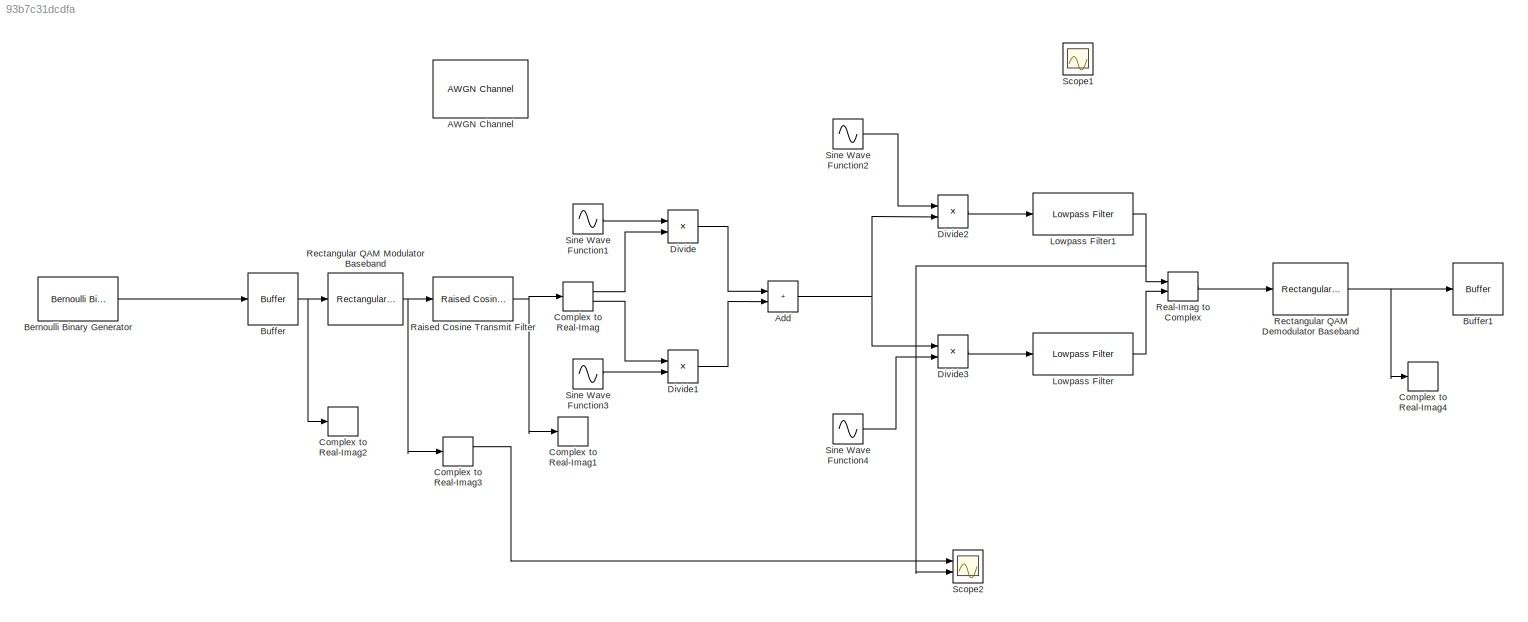
MODEL slx_93b7c31dcdfa
KIND model
CONFIG AbsTol = auto
CONFIG EnableMultiTasking = off
CONFIG FixedStep = auto
CONFIG MaxStep = auto
CONFIG MinStep = auto
CONFIG RelTol = 1e-3
CONFIG SampleTimeConstraint = Unconstrained
CONFIG SolverName = FixedStepAuto
CONFIG StartTime = 0.0
CONFIG StopTime = 10.0
BLOCK [Reference] AWGN Channel  REF=commchan3/AWGN
Channel
  Ports = [1, 1]
  SourceBlock = commchan3/AWGN\nChannel
  SourceProductBaseCode = CM
  SourceType = AWGN Channel
  UserDataPersistent = on
BLOCK [Sum] Add
  IconShape = rectangular
  Ports = [2, 1]
BLOCK [Reference] Bernoulli Binary Generator  REF=commrandsrc3/Bernoulli Binary
Generator
  Ports = [0, 1]
  SourceBlock = commrandsrc3/Bernoulli Binary\nGenerator
  SourceProductBaseCode = CM
  SourceType = Bernoulli Binary Generator
BLOCK [Buffer] Buffer
  N = 2
  OutputFrames = off
BLOCK [Buffer] Buffer1
  N = 2
  OutputFrames = off
BLOCK [ComplexToRealImag] Complex to Real-Imag
  Ports = [1, 2]
BLOCK [ComplexToRealImag] Complex to Real-Imag1
  Ports = [1, 2]
BLOCK [ComplexToRealImag] Complex to Real-Imag2
  Ports = [1, 2]
BLOCK [ComplexToRealImag] Complex to Real-Imag3
  Ports = [1, 2]
BLOCK [ComplexToRealImag] Complex to Real-Imag4
  Ports = [1, 2]
BLOCK [Product] Divide
  Inputs = **
  Ports = [2, 1]
BLOCK [Product] Divide1
  Inputs = **
  Ports = [2, 1]
BLOCK [Product] Divide2
  Inputs = **
  Ports = [2, 1]
BLOCK [Product] Divide3
  Inputs = **
  Ports = [2, 1]
BLOCK [Reference] Lowpass Filter  REF=dspfdesign/Lowpass Filter
  Ports = [1, 1]
  SourceBlock = dspfdesign/Lowpass Filter
  SourceProductBaseCode = DS
  SourceType = dsp.LowpassFilter
BLOCK [Reference] Lowpass Filter1  REF=dspfdesign/Lowpass Filter
  Ports = [1, 1]
  SourceBlock = dspfdesign/Lowpass Filter
  SourceProductBaseCode = DS
  SourceType = dsp.LowpassFilter
BLOCK [Reference] Raised Cosine Transmit Filter  REF=commfilt2/Raised Cosine
Transmit Filter
  Ports = [1, 1]
  SourceBlock = commfilt2/Raised Cosine\nTransmit Filter
  SourceProductBaseCode = CM
  SourceType = Raised Cosine Transmit Filter
  UserDataPersistent = on
BLOCK [RealImagToComplex] Real-Imag to Complex
  Ports = [2, 1]
BLOCK [Reference] Rectangular QAM Demodulator Baseband  REF=commdigbbndam3/Rectangular QAM
Demodulator
Baseband
  Ports = [1, 1]
  SourceBlock = commdigbbndam3/Rectangular QAM\nDemodulator\nBaseband
  SourceProductBaseCode = CM
  SourceType = Rectangular QAM Demodulator Baseband
BLOCK [Reference] Rectangular QAM Modulator Baseband  REF=commdigbbndam3/Rectangular QAM
Modulator
Baseband
  Ports = [1, 1]
  SourceBlock = commdigbbndam3/Rectangular QAM\nModulator\nBaseband
  SourceProductBaseCode = CM
  SourceType = Rectangular QAM Modulator Baseband
BLOCK [Scope] Scope1
  Floating = off
  NumInputPorts = 1
  Ports = [1]
  ScopeSpecificationString = Simulink.scopes.TimeScopeBlockCfg('CurrentConfiguration', extmgr.ConfigurationSet(extmgr.Configuration('Core','General UI',true),extmgr.Configuration('Core','Source UI',true),extmgr.Configuration('Sources','WiredSimulink',true,'DataLoggingVariableName','ScopeData1'),extmgr.Configuration('Visuals','Time Domain',true),extmgr.Configuration('Tools','Plot Navigation',true),extmgr.Configuration('Tools',...<+40ch>
BLOCK [Scope] Scope2
  Floating = off
  NumInputPorts = 2
  Ports = [2]
  ScopeSpecificationString = Simulink.scopes.TimeScopeBlockCfg('CurrentConfiguration', extmgr.ConfigurationSet(extmgr.Configuration('Core','General UI',true),extmgr.Configuration('Core','Source UI',true),extmgr.Configuration('Sources','WiredSimulink',true,'DataLoggingVariableName','ScopeData2'),extmgr.Configuration('Visuals','Time Domain',true,'SerializedDisplays',{struct('MinYLimReal','-5.11235','MaxYLimReal','2.68239','YLab...<+2106ch>
BLOCK [Sin] Sine Wave Function1
  Frequency = 1e-8
  Ports = [0, 1]
  SampleTime = 1e-8
  Samples = 20
  SineType = Sample based
BLOCK [Sin] Sine Wave Function2
  Frequency = 1e-8
  Ports = [0, 1]
  SampleTime = 1e-8
  Samples = 20
  SineType = Sample based
BLOCK [Sin] Sine Wave Function3
  Frequency = 1e-8
  Offset = 5
  Ports = [0, 1]
  SampleTime = 1e-8
  Samples = 20
  SineType = Sample based
BLOCK [Sin] Sine Wave Function4
  Frequency = 1e-8
  Offset = 5
  Ports = [0, 1]
  SampleTime = 1e-8
  Samples = 20
  SineType = Sample based
NET Add:1 -> Divide2:2, Divide3:1
LINE Bernoulli Binary Generator:1 -> Buffer:1
NET Buffer:1 -> Complex to Real-Imag2:1, Rectangular QAM Modulator Baseband:1
LINE Complex to Real-Imag3:1 -> Scope2:1
LINE Complex to Real-Imag:1 -> Divide:2
LINE Complex to Real-Imag:2 -> Divide1:1
LINE Divide1:1 -> Add:2
LINE Divide2:1 -> Lowpass Filter1:1
LINE Divide3:1 -> Lowpass Filter:1
LINE Divide:1 -> Add:1
NET Lowpass Filter1:1 -> Real-Imag to Complex:1, Scope2:2
LINE Lowpass Filter:1 -> Real-Imag to Complex:2
NET Raised Cosine Transmit Filter:1 -> Complex to Real-Imag1:1, Complex to Real-Imag:1
LINE Real-Imag to Complex:1 -> Rectangular QAM Demodulator Baseband:1
NET Rectangular QAM Demodulator Baseband:1 -> Buffer1:1, Complex to Real-Imag4:1
NET Rectangular QAM Modulator Baseband:1 -> Complex to Real-Imag3:1, Raised Cosine Transmit Filter:1
LINE Sine Wave Function1:1 -> Divide:1
LINE Sine Wave Function2:1 -> Divide2:1
LINE Sine Wave Function3:1 -> Divide1:2
LINE Sine Wave Function4:1 -> Divide3:2
note: NET lines group one-source signal fan-out (src -> all destinations, sorted); 1:1 wires keep LINE
